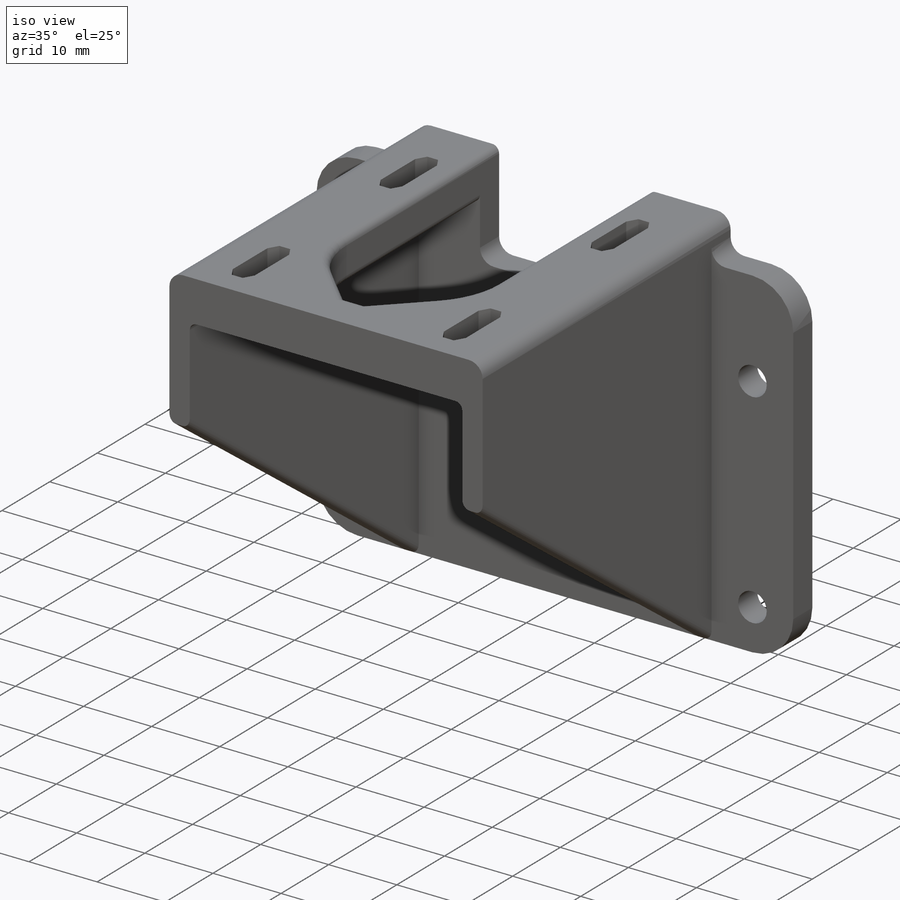
[diagram: iso view]
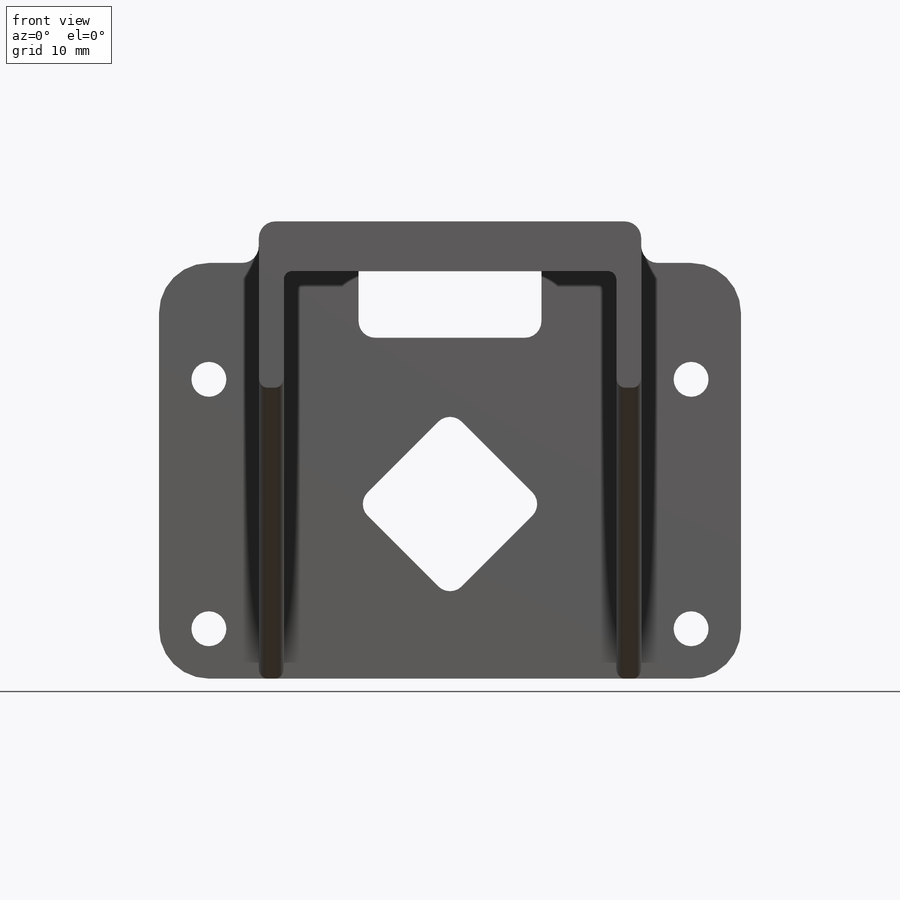
[diagram: front view]
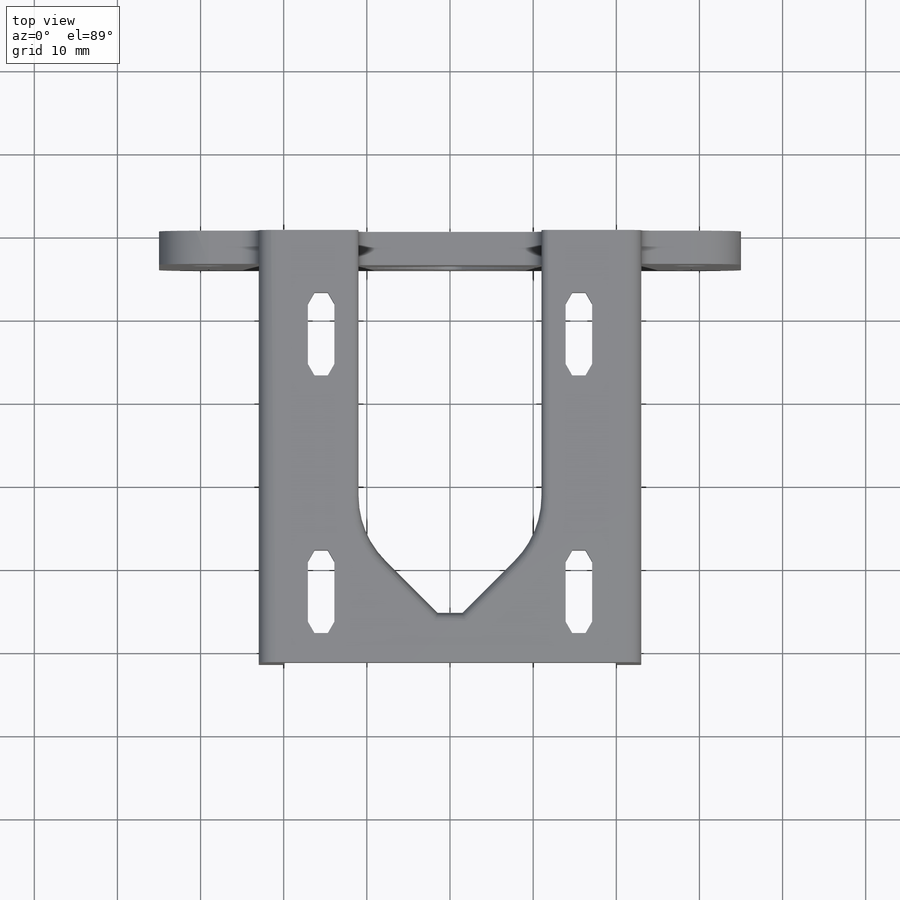
[diagram: top view]
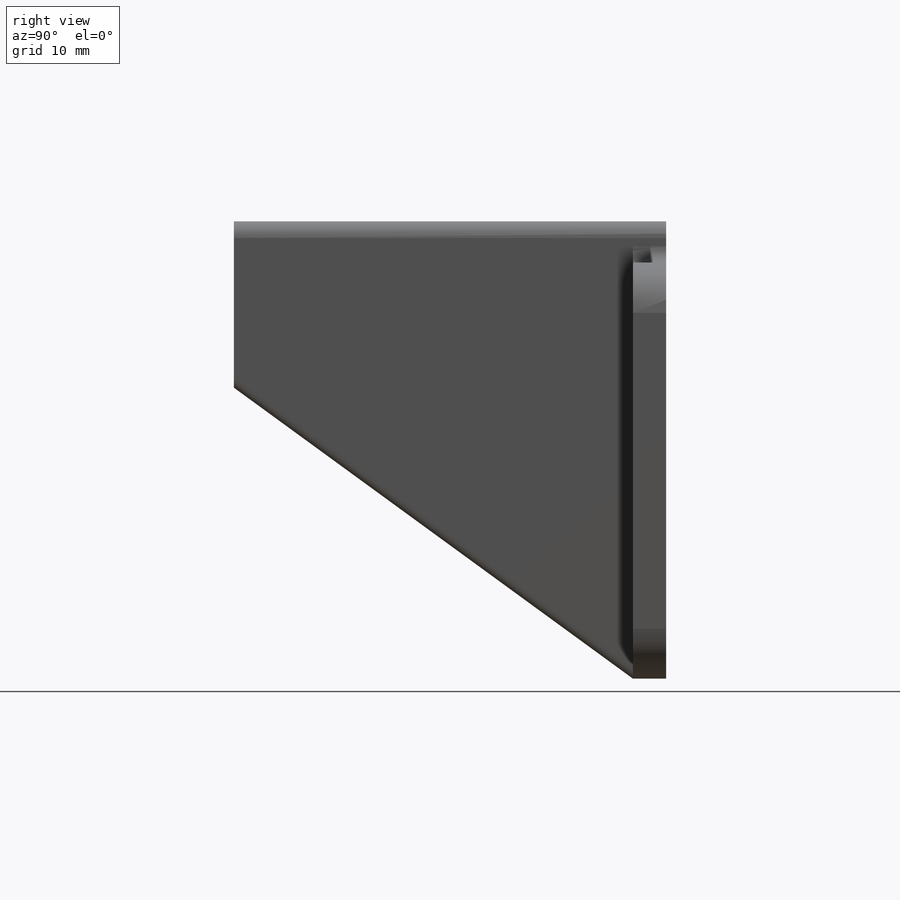
[diagram: right view]
SOLIDWORKS PART (.sldprt)
format: sldprt  version: not decoded by parser v0  size: 467,968 bytes
history: native  units: mm
features: sketch x9, cut_extrude x4, fillet x4, extrude x3, material x1, hole x1 (+11 scaffold rows collapsed)
feature tree (33):
  scaffold x11  (default folders/planes/origin — collapsed)
  material  "Material <not specified>"
  sketch  "Sketch1"  dims[c1.D1=42.0mm c1.D2=70.0mm c2.D1=50.0mm c2.D2=70.0mm]
  extrude  "Boss-Extrude1"  Depth=4mm
  sketch  "Sketch2"  dims[c1.D1=~6.87738mm c1.D3=45.0mm c1.D4=~8.645008mm c2.D1=~45.92642mm c2.D2=~3.304471mm c3.D1=~9.412737mm c3.D2=~14.319376mm c4.D1=3.0mm c4.D2=6.0mm c4.D3=12.0mm c4.D4=46.0mm c4.D5=30.0mm c5.D2=3.0mm]
  extrude  "Boss-Extrude2"  Depth=52mm
  sketch  "Sketch3"  dims[D1=20.0mm]
  cut_extrude  "Cut-Extrude3"  [1 undecoded]
  fillet  "Fillet1"  Radius=6mm
  sketch  "Sketch6"  dims[c1.D4=3.25mm c1.D2=3.25mm c1.D3=3.25mm c1.D5=22.0mm c1.D7=22.0mm c1.D1=~49.861897mm c2.D2=~9.481193mm c2.D1=31.0mm c3.D2=8.0mm c3.D3=42.0mm c3.D5=31.0mm c3.D1=27.0mm c4.D2=31.0mm c4.D3=31.0mm c5.D2=~6.301495mm c6.D2=30.0deg c6.D3=3.2mm c6.D4=10.0mm c6.D5=31.0mm c6.D6=31.0mm c6.D1=28.0mm]
  cut_extrude  "Cut-Extrude6"  [1 undecoded]
  sketch  "Sketch7"  dims[c1.D1=~7.374154mm c1.D2=~26.697715mm c2.D1=22.0mm c2.D2=9.0mm]
  cut_extrude  "Cut-Extrude7"  [1 undecoded]
  hole  "Ø4.2 (4.2) Diameter Hole1"  Diameter=4.2mm Depth=4mm
  sketch  "Sketch9"  dims[D1=30.0mm D2=6.0mm D3=6.0mm]
  sketch  "Sketch8"  dims[hole-wizard template sketch: 47 standard entries collapsed; hole parameters kept: c15.Hole Depth=4.0mm c15.D3=~14.816244mm c15.Drill Angle=118.0deg]
  sketch  "Sketch10"  dims[c1.D3=2.0mm c1.D4=2.0mm c1.D1=~14.780861mm c1.D2=~15.759774mm c2.D1=16.0mm c2.D2=21.0mm]
  cut_extrude  "Cut-Extrude8"  [1 undecoded]
  sketch  "Sketch11"  dims[c1.D1=~5.906467mm c2.D1=~100.159216deg c3.D1=32.0mm c3.D2=3.0mm]
  extrude  "Boss-Extrude3"  [1 undecoded]
  fillet  "Fillet2"  Radius=2mm
  fillet  "Fillet3"  Radius=1mm
  fillet  "Fillet4"  Radius=1mm
decode coverage: 16 of 21 modeling features carry decoded parameters
note: ~ marks probable driven/reference dimensions
note: 5 parameter values undecoded
summary: no parameter record found for 5 features
note: suppression state not decoded; provenance and decode notes live in map.json
